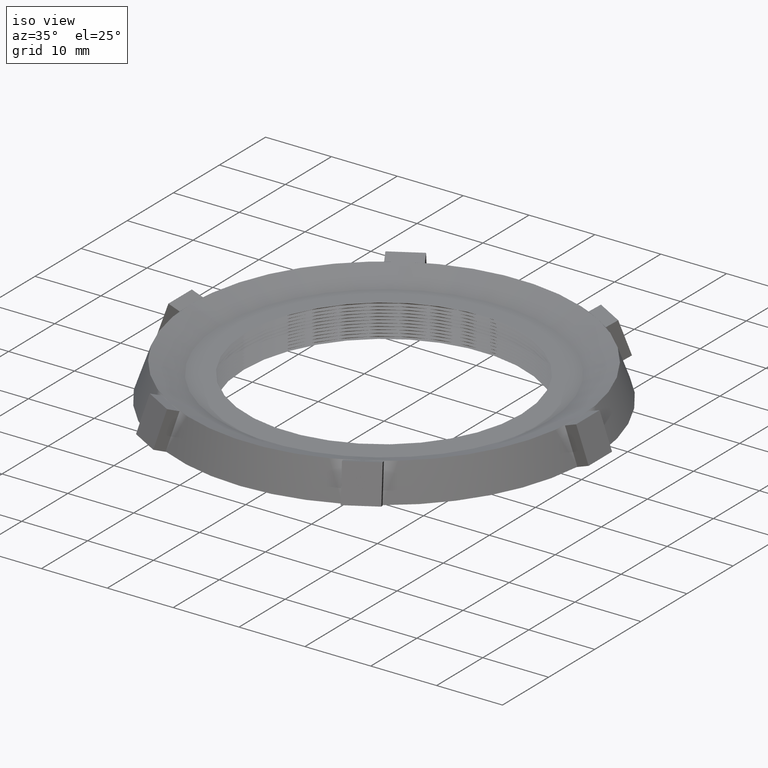
[diagram: clean part render]
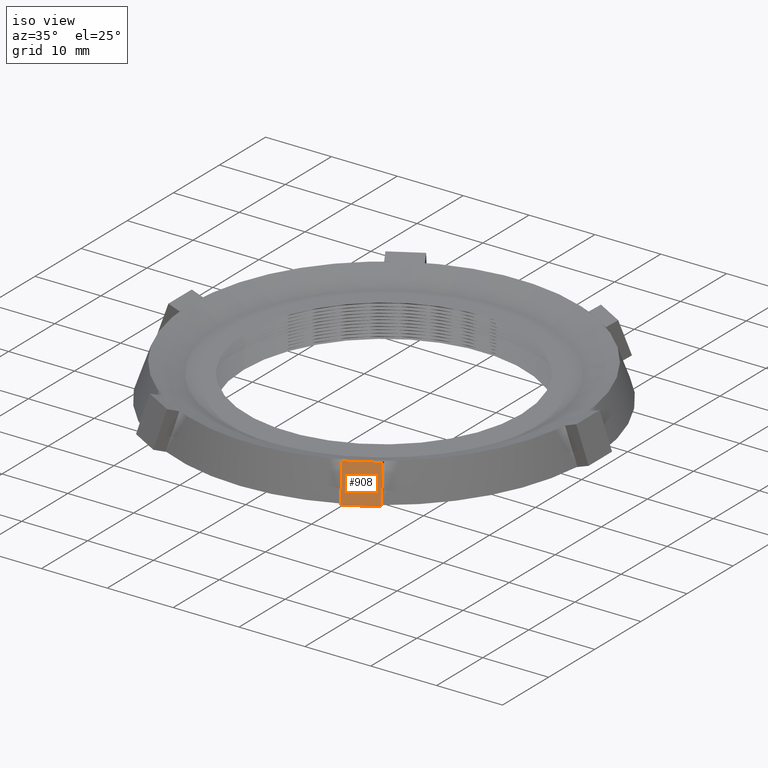
[diagram: same view with one face highlighted and labeled with its STEP entity id]
A machine part, iso view. The second image highlights one B-rep face of the part: STEP entity #908.
In plain terms, the highlighted planar face has unit normal (-0.4698, 0.8138, -0.342).
Its self-contained STEP definition (entity closure, byte-faithful):
#808 = EDGE_CURVE ( 'NONE', #941, #848, #2519, .T. ) ;
#842 = VERTEX_POINT ( 'NONE', #2410 ) ;
#848 = VERTEX_POINT ( 'NONE', #2456 ) ;
#893 = VERTEX_POINT ( 'NONE', #2795 ) ;
#895 = EDGE_CURVE ( 'NONE', #893, #842, #2794, .T. ) ;
#907 = EDGE_CURVE ( 'NONE', #893, #941, #2587, .T. ) ;
#908 = ADVANCED_FACE ( 'NONE', ( #2583 ), #2581, .F. ) ;
#909 = EDGE_LOOP ( 'NONE', ( #910, #911, #912, #914 ) ) ;
#910 = ORIENTED_EDGE ( 'NONE', *, *, #907, .T. ) ;
#911 = ORIENTED_EDGE ( 'NONE', *, *, #808, .T. ) ;
#912 = ORIENTED_EDGE ( 'NONE', *, *, #913, .F. ) ;
#913 = EDGE_CURVE ( 'NONE', #842, #848, #2582, .T. ) ;
#914 = ORIENTED_EDGE ( 'NONE', *, *, #895, .F. ) ;
#941 = VERTEX_POINT ( 'NONE', #2742 ) ;
#2410 = CARTESIAN_POINT ( 'NONE',  ( 0.7332856345216815000, -1.070087975451904800, -0.01142195143690943400 ) ) ;
#2456 = CARTESIAN_POINT ( 'NONE',  ( 0.5600805537647948200, -1.170087975451906700, -0.01142195143690943400 ) ) ;
#2516 = DIRECTION ( 'NONE',  ( 0.1710100716628356100, -0.2961981327260180300, -0.9396926207859099800 ) ) ;
#2517 = VECTOR ( 'NONE', #2516, 39.37007874015748100 ) ;
#2518 = CARTESIAN_POINT ( 'NONE',  ( 0.5600805537647948200, -1.170087975451906700, -0.01142195143690943400 ) ) ;
#2519 = LINE ( 'NONE', #2518, #2517 ) ;
#2574 = DIRECTION ( 'NONE',  ( -0.8660254037844328200, -0.5000000000000099900, -0.0000000000000000000 ) ) ;
#2575 = VECTOR ( 'NONE', #2574, 39.37007874015748900 ) ;
#2576 = CARTESIAN_POINT ( 'NONE',  ( 0.7332856345216815000, -1.070087975451904800, -0.01142195143690943400 ) ) ;
#2577 = DIRECTION ( 'NONE',  ( -0.8660254037844328200, -0.5000000000000101000, 0.0000000000000000000 ) ) ;
#2578 = DIRECTION ( 'NONE',  ( -0.4698463103929645400, 0.8137976813493696900, -0.3420201433256642700 ) ) ;
#2579 = CARTESIAN_POINT ( 'NONE',  ( 0.7332856345216815000, -1.070087975451904800, -0.01142195143690943400 ) ) ;
#2580 = AXIS2_PLACEMENT_3D ( 'NONE', #2579, #2578, #2577 ) ;
#2581 = PLANE ( 'NONE',  #2580 ) ;
#2582 = LINE ( 'NONE', #2576, #2575 ) ;
#2583 = FACE_OUTER_BOUND ( 'NONE', #909, .T. ) ;
#2584 = DIRECTION ( 'NONE',  ( -0.8660254037844328200, -0.5000000000000099900, -0.0000000000000000000 ) ) ;
#2585 = VECTOR ( 'NONE', #2584, 39.37007874015748900 ) ;
#2586 = CARTESIAN_POINT ( 'NONE',  ( 0.6960723427246051600, -1.005632663342484400, 0.1930634063951750500 ) ) ;
#2587 = LINE ( 'NONE', #2586, #2585 ) ;
#2742 = CARTESIAN_POINT ( 'NONE',  ( 0.5228672619677186000, -1.105632663342486200, 0.1930634063951750500 ) ) ;
#2791 = DIRECTION ( 'NONE',  ( 0.1710100716628356100, -0.2961981327260180300, -0.9396926207859099800 ) ) ;
#2792 = VECTOR ( 'NONE', #2791, 39.37007874015748100 ) ;
#2793 = CARTESIAN_POINT ( 'NONE',  ( 0.7332856345216815000, -1.070087975451904800, -0.01142195143690943400 ) ) ;
#2794 = LINE ( 'NONE', #2793, #2792 ) ;
#2795 = CARTESIAN_POINT ( 'NONE',  ( 0.6960723427246051600, -1.005632663342484400, 0.1930634063951750500 ) ) ;